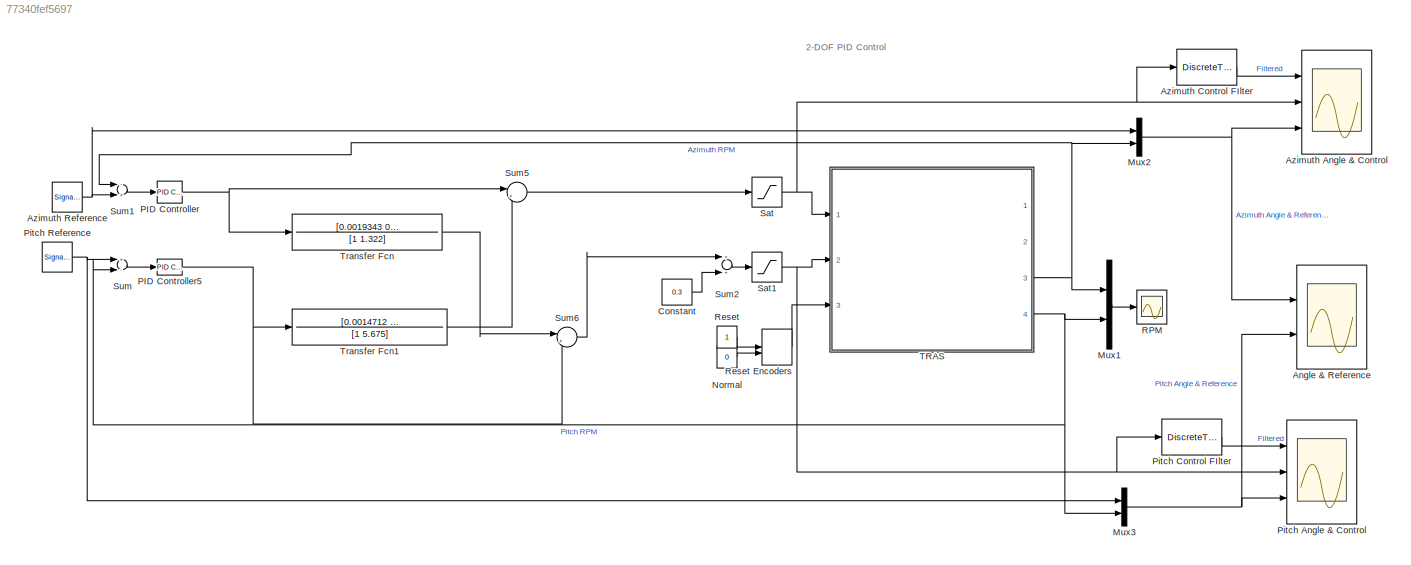
MODEL slx_77340fef5697
KIND model
BLOCK [Scope] Angle & Reference
  DataFormat = StructureWithTime
  ExtModeLoggingTrig = on
  ExtModeUploadOption = log
  Floating = off
  MaxDataPoints = 12000
  NumInputPorts = 2
  Ports = [2]
  SampleTime = 0
  SaveName = AngleReference_
  SaveToWorkspace = on
  ShowLegends = off
  TimeRange = 90
  YMax = 100~250
  YMin = -125~-25
  ZoomMode = xonly
BLOCK [Scope] Azimuth Angle & Control
  DataFormat = StructureWithTime
  ExtModeLoggingTrig = on
  ExtModeUploadOption = log
  Floating = off
  MaxDataPoints = 12000
  NumInputPorts = 3
  Ports = [3]
  SampleTime = 0
  SaveName = AngleCtrl_
  SaveToWorkspace = on
  ShowLegends = off
  TimeRange = 90
  YMax = 1.5e-17~0.5~100
  YMin = -2e-17~-0.5~-125
  ZoomMode = xonly
BLOCK [DiscreteTransferFcn] Azimuth Control FIlter
  Denominator = [1.0000   -3.9845    6.4349   -5.2536    2.1651   -0.3599]
  InputPortMap = u0
  Numerator = [0.0598    0.2990    0.5980    0.5980    0.2990    0.0598] * 1e-3
  Ports = [1, 1]
  SampleTime = 0.01
BLOCK [SignalGenerator] Azimuth Reference
  Amplitude = .4
  Frequency = .025
  Ports = [0, 1]
  WaveForm = square
BLOCK [Constant] Constant
  Value = 0.3
BLOCK [Mux] Mux1
  DisplayOption = bar
  Inputs = 2
  Ports = [2, 1]
BLOCK [Mux] Mux2
  DisplayOption = bar
  Inputs = 2
  Ports = [2, 1]
BLOCK [Mux] Mux3
  DisplayOption = bar
  Inputs = 2
  Ports = [2, 1]
BLOCK [Constant] Normal
  Value = 0
BLOCK [Reference] PID Controller  REF=simulink/Continuous/PID Controller
  AntiWindupMode = none
  Controller = PI
  D = 0
  DOutDataTypeStr = Inherit: Inherit via internal rule
  DOutMax = []
  DOutMin = []
  DParamDataTypeStr = Inherit: Inherit via internal rule
  DParamMax = []
  DParamMin = []
  ExternalReset = none
  FilterContinuousStateAttributes = ''
  FilterMethod = Forward Euler
  FilterOutDataTypeStr = Inherit: Inherit via internal rule
  FilterOutMax = []
  FilterOutMin = []
  FilterRTWStateStorageClass = Auto
  FilterStateMustResolveToSignalObject = off
  Form = Parallel
  I = 2.4128*3.527
  IOutDataTypeStr = Inherit: Inherit via internal rule
  IOutMax = []
  IOutMin = []
  IParamDataTypeStr = Inherit: Inherit via internal rule
  IParamMax = []
  IParamMin = []
  IgnoreLimit = off
  InitialConditionForFilter = 0
  InitialConditionForIntegrator = 0
  InitialConditionSource = internal
  IntegratorContinuousStateAttributes = ''
  IntegratorMethod = Forward Euler
  IntegratorOutDataTypeStr = Inherit: Inherit via internal rule
  IntegratorOutMax = []
  IntegratorOutMin = []
  IntegratorRTWStateStorageClass = Auto
  IntegratorStateMustResolveToSignalObject = off
  Kb = 1
  KbOutDataTypeStr = Inherit: Inherit via internal rule
  KbOutMax = []
  KbOutMin = []
  KbParamDataTypeStr = Inherit: Inherit via internal rule
  KbParamMax = []
  KbParamMin = []
  Kt = 1
  KtOutDataTypeStr = Inherit: Inherit via internal rule
  KtOutMax = []
  KtOutMin = []
  KtParamDataTypeStr = Inherit: Inherit via internal rule
  KtParamMax = []
  KtParamMin = []
  LimitOutput = off
  LinearizeAsGain = on
  LockScale = off
  LowerSaturationLimit = -inf
  N = 100
  NOutDataTypeStr = Inherit: Inherit via internal rule
  NOutMax = []
  NOutMin = []
  NParamDataTypeStr = Inherit: Inherit via internal rule
  NParamMax = []
  NParamMin = []
  P = 2.4128
  POutDataTypeStr = Inherit: Inherit via internal rule
  POutMax = []
  POutMin = []
  PParamDataTypeStr = Inherit: Inherit via internal rule
  PParamMax = []
  PParamMin = []
  Ports = [1, 1]
  RndMeth = Floor
  SampleTime = 1
  SaturateOnIntegerOverflow = off
  SaturationOutDataTypeStr = Inherit: Same as input
  SaturationOutMax = []
  SaturationOutMin = []
  SourceBlock = simulink/Continuous/PID Controller
  SourceType = PID 1dof
  SumAccumDataTypeStr = Inherit: Inherit via internal rule
  SumDAccumDataTypeStr = Inherit: Inherit via internal rule
  SumDOutDataTypeStr = Inherit: Inherit via internal rule
  SumDOutMax = []
  SumDOutMin = []
  SumI1AccumDataTypeStr = Inherit: Inherit via internal rule
  SumI1OutDataTypeStr = Inherit: Inherit via internal rule
  SumI1OutMax = []
  SumI1OutMin = []
  SumI2AccumDataTypeStr = Inherit: Inherit via internal rule
  SumI2OutDataTypeStr = Inherit: Inherit via internal rule
  SumI2OutMax = []
  SumI2OutMin = []
  SumI3AccumDataTypeStr = Inherit: Inherit via internal rule
  SumI3OutDataTypeStr = Inherit: Inherit via internal rule
  SumI3OutMax = []
  SumI3OutMin = []
  SumOutDataTypeStr = Inherit: Inherit via internal rule
  SumOutMax = []
  SumOutMin = []
  TimeDomain = Continuous-time
  TrackingMode = off
  UpperSaturationLimit = inf
  ZeroCross = on
BLOCK [Reference] PID Controller5  REF=simulink/Continuous/PID Controller
  AntiWindupMode = none
  Controller = PI
  D = 0
  DOutDataTypeStr = Inherit: Inherit via internal rule
  DOutMax = []
  DOutMin = []
  DParamDataTypeStr = Inherit: Inherit via internal rule
  DParamMax = []
  DParamMin = []
  ExternalReset = none
  FilterContinuousStateAttributes = ''
  FilterMethod = Forward Euler
  FilterOutDataTypeStr = Inherit: Inherit via internal rule
  FilterOutMax = []
  FilterOutMin = []
  FilterRTWStateStorageClass = Auto
  FilterStateMustResolveToSignalObject = off
  Form = Parallel
  I = 0.00027527*1.287
  IOutDataTypeStr = Inherit: Inherit via internal rule
  IOutMax = []
  IOutMin = []
  IParamDataTypeStr = Inherit: Inherit via internal rule
  IParamMax = []
  IParamMin = []
  IgnoreLimit = off
  InitialConditionForFilter = 0
  InitialConditionForIntegrator = 0
  InitialConditionSource = internal
  IntegratorContinuousStateAttributes = ''
  IntegratorMethod = Forward Euler
  IntegratorOutDataTypeStr = Inherit: Inherit via internal rule
  IntegratorOutMax = []
  IntegratorOutMin = []
  IntegratorRTWStateStorageClass = Auto
  IntegratorStateMustResolveToSignalObject = off
  Kb = 1
  KbOutDataTypeStr = Inherit: Inherit via internal rule
  KbOutMax = []
  KbOutMin = []
  KbParamDataTypeStr = Inherit: Inherit via internal rule
  KbParamMax = []
  KbParamMin = []
  Kt = 1
  KtOutDataTypeStr = Inherit: Inherit via internal rule
  KtOutMax = []
  KtOutMin = []
  KtParamDataTypeStr = Inherit: Inherit via internal rule
  KtParamMax = []
  KtParamMin = []
  LimitOutput = off
  LinearizeAsGain = on
  LockScale = off
  LowerSaturationLimit = -inf
  N = 100
  NOutDataTypeStr = Inherit: Inherit via internal rule
  NOutMax = []
  NOutMin = []
  NParamDataTypeStr = Inherit: Inherit via internal rule
  NParamMax = []
  NParamMin = []
  P = 0.00027527
  POutDataTypeStr = Inherit: Inherit via internal rule
  POutMax = []
  POutMin = []
  PParamDataTypeStr = Inherit: Inherit via internal rule
  PParamMax = []
  PParamMin = []
  Ports = [1, 1]
  RndMeth = Floor
  SampleTime = 1
  SaturateOnIntegerOverflow = off
  SaturationOutDataTypeStr = Inherit: Same as input
  SaturationOutMax = []
  SaturationOutMin = []
  SourceBlock = simulink/Continuous/PID Controller
  SourceType = PID 1dof
  SumAccumDataTypeStr = Inherit: Inherit via internal rule
  SumDAccumDataTypeStr = Inherit: Inherit via internal rule
  SumDOutDataTypeStr = Inherit: Inherit via internal rule
  SumDOutMax = []
  SumDOutMin = []
  SumI1AccumDataTypeStr = Inherit: Inherit via internal rule
  SumI1OutDataTypeStr = Inherit: Inherit via internal rule
  SumI1OutMax = []
  SumI1OutMin = []
  SumI2AccumDataTypeStr = Inherit: Inherit via internal rule
  SumI2OutDataTypeStr = Inherit: Inherit via internal rule
  SumI2OutMax = []
  SumI2OutMin = []
  SumI3AccumDataTypeStr = Inherit: Inherit via internal rule
  SumI3OutDataTypeStr = Inherit: Inherit via internal rule
  SumI3OutMax = []
  SumI3OutMin = []
  SumOutDataTypeStr = Inherit: Inherit via internal rule
  SumOutMax = []
  SumOutMin = []
  TimeDomain = Continuous-time
  TrackingMode = off
  UpperSaturationLimit = inf
  ZeroCross = on
BLOCK [Scope] Pitch Angle & Control
  DataFormat = StructureWithTime
  ExtModeLoggingTrig = on
  ExtModeUploadOption = log
  Floating = off
  MaxDataPoints = 12000
  NumInputPorts = 3
  Ports = [3]
  SampleTime = 0
  SaveName = AngleCtrl1_
  SaveToWorkspace = on
  ShowLegends = off
  TimeRange = 35
  YMax = 1~1.2~1500
  YMin = -0.4~-0.2~-500
  ZoomMode = xonly
BLOCK [DiscreteTransferFcn] Pitch Control FIlter
  Denominator = [1.0000   -3.9845    6.4349   -5.2536    2.1651   -0.3599]
  InputPortMap = u0
  Numerator = [0.0598    0.2990    0.5980    0.5980    0.2990    0.0598] * 1e-3
  Ports = [1, 1]
  SampleTime = 0.01
BLOCK [SignalGenerator] Pitch Reference
  Amplitude = .3
  Frequency = 1/30
  Ports = [0, 1]
BLOCK [Scope] RPM
  DataFormat = StructureWithTime
  ExtModeLoggingTrig = on
  ExtModeUploadOption = log
  Floating = off
  MaxDataPoints = 12000
  NumInputPorts = 1
  Ports = [1]
  SampleTime = 0
  SaveName = RPM_
  SaveToWorkspace = on
  ShowLegends = off
  TimeRange = 90
  YMax = 7000
  YMin = -6000
BLOCK [Constant] Reset
BLOCK [ManualSwitch] Reset Encoders
  CurrentSetting = 0
BLOCK [Saturate] Sat
  InputPortMap = u0
  Ports = [1, 1]
BLOCK [Saturate] Sat1
  InputPortMap = u0
  LowerLimit = -.2
  Ports = [1, 1]
  UpperLimit = 1
BLOCK [Sum] Sum
  InputSameDT = off
  Inputs = +-
  OutDataTypeStr = Inherit: Inherit via internal rule
  Ports = [2, 1]
BLOCK [Sum] Sum1
  InputSameDT = off
  Inputs = -+
  OutDataTypeStr = Inherit: Inherit via internal rule
  Ports = [2, 1]
BLOCK [Sum] Sum2
  InputSameDT = off
  OutDataTypeStr = Inherit: Inherit via internal rule
  Ports = [2, 1]
BLOCK [Sum] Sum5
  IconShape = round
  InputSameDT = off
  Inputs = |++
  OutDataTypeStr = Inherit: Inherit via internal rule
  Ports = [2, 1]
  SaturateOnIntegerOverflow = off
BLOCK [Sum] Sum6
  IconShape = round
  InputSameDT = off
  Inputs = |++
  OutDataTypeStr = Inherit: Inherit via internal rule
  Ports = [2, 1]
  SaturateOnIntegerOverflow = off
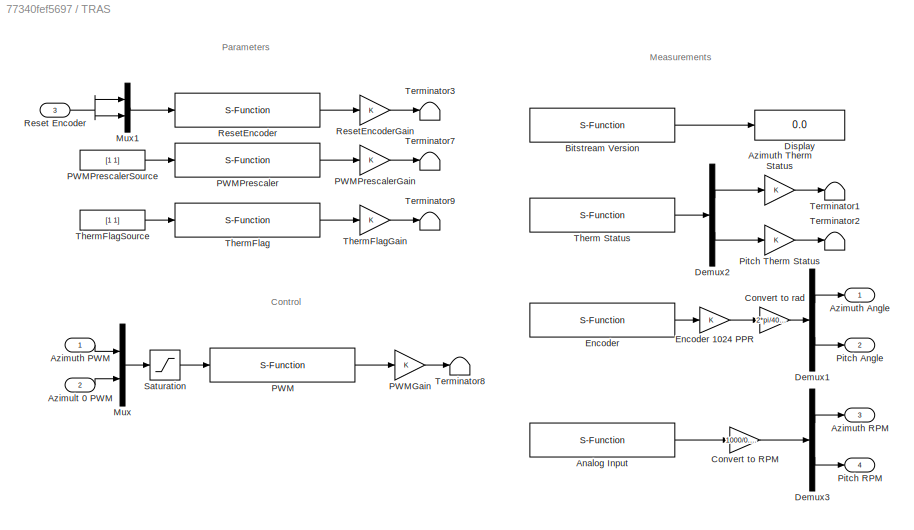
BLOCK [SubSystem] TRAS
  FunctionWithSeparateData = off
  MaskHideContents = off
  MinAlgLoopOccurrences = off
  Opaque = off
  Ports = [3, 4]
  PropExecContextOutsideSubsystem = off
  RTWSystemCode = Auto
  RequestExecContextInheritance = off
BLOCK [S-Function] TRAS/Analog Input
  EnableBusSupport = off
  FunctionName = TRAS_AnalogInput
  Parameters = BaseAddress, [1 0], [1 1], T0
  Ports = [0, 1]
BLOCK [Inport] TRAS/Azimult 0 PWM
  IconDisplay = Port number
  Port = 2
BLOCK [Outport] TRAS/Azimuth Angle
  IconDisplay = Port number
  InitialOutput = 0
BLOCK [Inport] TRAS/Azimuth PWM
  IconDisplay = Port number
BLOCK [Outport] TRAS/Azimuth RPM
  IconDisplay = Port number
  InitialOutput = 0
  Port = 3
BLOCK [Gain] TRAS/Azimuth Therm Status
BLOCK [S-Function] TRAS/Bitstream Version
  EnableBusSupport = off
  FunctionName = TRAS_BitstreamVersion
  Parameters = BaseAddress, T0
  Ports = [0, 1]
BLOCK [Gain] TRAS/Convert to RPM
  Gain = 1000/0.52/2
BLOCK [Gain] TRAS/Convert to rad
  Gain = 2*pi/4096
BLOCK [Demux] TRAS/Demux1
  Outputs = 2
  Ports = [1, 2]
BLOCK [Demux] TRAS/Demux2
  Outputs = 2
  Ports = [1, 2]
BLOCK [Demux] TRAS/Demux3
  Outputs = 2
  Ports = [1, 2]
BLOCK [Display] TRAS/Display
  Decimation = 1
  Lockdown = off
  Ports = [1]
BLOCK [S-Function] TRAS/Encoder
  EnableBusSupport = off
  FunctionName = TRAS_Encoder
  Parameters = BaseAddress, T0
  Ports = [0, 1]
BLOCK [Gain] TRAS/Encoder 1024 PPR
BLOCK [Mux] TRAS/Mux
  Inputs = 2
  Ports = [2, 1]
BLOCK [Mux] TRAS/Mux1
  Inputs = 2
  Ports = [2, 1]
BLOCK [S-Function] TRAS/PWM
  EnableBusSupport = off
  FunctionName = TRAS_PWM
  Parameters = BaseAddress, T0
  Ports = [1, 1]
BLOCK [Gain] TRAS/PWMGain
BLOCK [S-Function] TRAS/PWMPrescaler
  EnableBusSupport = off
  FunctionName = TRAS_PWMPrescaler
  Parameters = BaseAddress, T0
  Ports = [1, 1]
BLOCK [Gain] TRAS/PWMPrescalerGain
BLOCK [Constant] TRAS/PWMPrescalerSource
  Value = [1 1]
BLOCK [Outport] TRAS/Pitch Angle
  IconDisplay = Port number
  InitialOutput = 0
  Port = 2
BLOCK [Outport] TRAS/Pitch RPM
  IconDisplay = Port number
  InitialOutput = 0
  Port = 4
BLOCK [Gain] TRAS/Pitch Therm Status
BLOCK [Inport] TRAS/Reset Encoder
  IconDisplay = Port number
  Port = 3
BLOCK [S-Function] TRAS/ResetEncoder
  EnableBusSupport = off
  FunctionName = TRAS_ResetEncoder
  Parameters = BaseAddress, T0
  Ports = [1, 1]
BLOCK [Gain] TRAS/ResetEncoderGain
BLOCK [Saturate] TRAS/Saturation
  InputPortMap = u0
  LowerLimit = -1
  Ports = [1, 1]
  UpperLimit = 1
BLOCK [Terminator] TRAS/Terminator1
BLOCK [Terminator] TRAS/Terminator2
BLOCK [Terminator] TRAS/Terminator3
BLOCK [Terminator] TRAS/Terminator7
BLOCK [Terminator] TRAS/Terminator8
BLOCK [Terminator] TRAS/Terminator9
BLOCK [S-Function] TRAS/Therm Status
  EnableBusSupport = off
  FunctionName = TRAS_PWMTherm
  Parameters = BaseAddress, T0
  Ports = [0, 1]
BLOCK [S-Function] TRAS/ThermFlag 
  EnableBusSupport = off
  FunctionName = TRAS_ThermFlag
  Parameters = BaseAddress, T0
  Ports = [1, 1]
BLOCK [Gain] TRAS/ThermFlagGain
BLOCK [Constant] TRAS/ThermFlagSource
  Value = [1 1]
BLOCK [TransferFcn] Transfer Fcn
  Denominator = [1 1.322]
  Numerator = [0.0019343  0.0019343*1.287]
BLOCK [TransferFcn] Transfer Fcn1
  Denominator = [1 5.675]
  Numerator = [0.0014712   0.0014712*3.527]
ANNOTATION (root): 2-DOF PID Control
ANNOTATION TRAS: Control
ANNOTATION TRAS: Measurements
ANNOTATION TRAS: Parameters
LINE Azimuth Control FIlter:1 -> Azimuth Angle & Control:1
NET Azimuth Reference:1 -> Mux2:1, Sum1:2
LINE Constant:1 -> Sum2:2
LINE Mux1:1 -> RPM:1
NET Mux2:1 -> Angle & Reference:1, Azimuth Angle & Control:3
NET Mux3:1 -> Angle & Reference:2, Pitch Angle & Control:3
LINE Normal:1 -> Reset Encoders:2
NET PID Controller5:1 -> Sum6:2, Transfer Fcn1:1
NET PID Controller:1 -> Sum5:1, Transfer Fcn:1
LINE Pitch Control FIlter:1 -> Pitch Angle & Control:1
NET Pitch Reference:1 -> Mux3:1, Sum:1
LINE Reset Encoders:1 -> TRAS:3
LINE Reset:1 -> Reset Encoders:1
NET Sat1:1 -> Pitch Angle & Control:2, Pitch Control FIlter:1, TRAS:2
NET Sat:1 -> Azimuth Angle & Control:2, Azimuth Control FIlter:1, TRAS:1
LINE Sum1:1 -> PID Controller:1
LINE Sum2:1 -> Sat1:1
LINE Sum5:1 -> Sat:1
LINE Sum6:1 -> Sum2:1
LINE Sum:1 -> PID Controller5:1
LINE TRAS/Analog Input:1 -> TRAS/Convert to RPM:1
LINE TRAS/Azimult 0 PWM:1 -> TRAS/Mux:2
LINE TRAS/Azimuth PWM:1 -> TRAS/Mux:1
LINE TRAS/Azimuth Therm Status:1 -> TRAS/Terminator1:1
LINE TRAS/Bitstream Version:1 -> TRAS/Display:1
LINE TRAS/Convert to RPM:1 -> TRAS/Demux3:1
LINE TRAS/Convert to rad:1 -> TRAS/Demux1:1
LINE TRAS/Demux1:1 -> TRAS/Azimuth Angle:1
LINE TRAS/Demux1:2 -> TRAS/Pitch Angle:1
LINE TRAS/Demux2:1 -> TRAS/Azimuth Therm Status:1
LINE TRAS/Demux2:2 -> TRAS/Pitch Therm Status:1
LINE TRAS/Demux3:1 -> TRAS/Azimuth RPM:1
LINE TRAS/Demux3:2 -> TRAS/Pitch RPM:1
LINE TRAS/Encoder 1024 PPR:1 -> TRAS/Convert to rad:1
LINE TRAS/Encoder:1 -> TRAS/Encoder 1024 PPR:1
LINE TRAS/Mux1:1 -> TRAS/ResetEncoder:1
LINE TRAS/Mux:1 -> TRAS/Saturation:1
LINE TRAS/PWM:1 -> TRAS/PWMGain:1
LINE TRAS/PWMGain:1 -> TRAS/Terminator8:1
LINE TRAS/PWMPrescaler:1 -> TRAS/PWMPrescalerGain:1
LINE TRAS/PWMPrescalerGain:1 -> TRAS/Terminator7:1
LINE TRAS/PWMPrescalerSource:1 -> TRAS/PWMPrescaler:1
LINE TRAS/Pitch Therm Status:1 -> TRAS/Terminator2:1
NET TRAS/Reset Encoder:1 -> TRAS/Mux1:1, TRAS/Mux1:2
LINE TRAS/ResetEncoder:1 -> TRAS/ResetEncoderGain:1
LINE TRAS/ResetEncoderGain:1 -> TRAS/Terminator3:1
LINE TRAS/Saturation:1 -> TRAS/PWM:1
LINE TRAS/Therm Status:1 -> TRAS/Demux2:1
LINE TRAS/ThermFlag :1 -> TRAS/ThermFlagGain:1
LINE TRAS/ThermFlagGain:1 -> TRAS/Terminator9:1
LINE TRAS/ThermFlagSource:1 -> TRAS/ThermFlag :1
NET TRAS:3 -> Mux1:1, Mux2:2, Sum1:1
NET TRAS:4 -> Mux1:2, Mux3:2, Sum:2
LINE Transfer Fcn1:1 -> Sum5:2
LINE Transfer Fcn:1 -> Sum6:1
note: NET lines group one-source signal fan-out (src -> all destinations, sorted); 1:1 wires keep LINE
